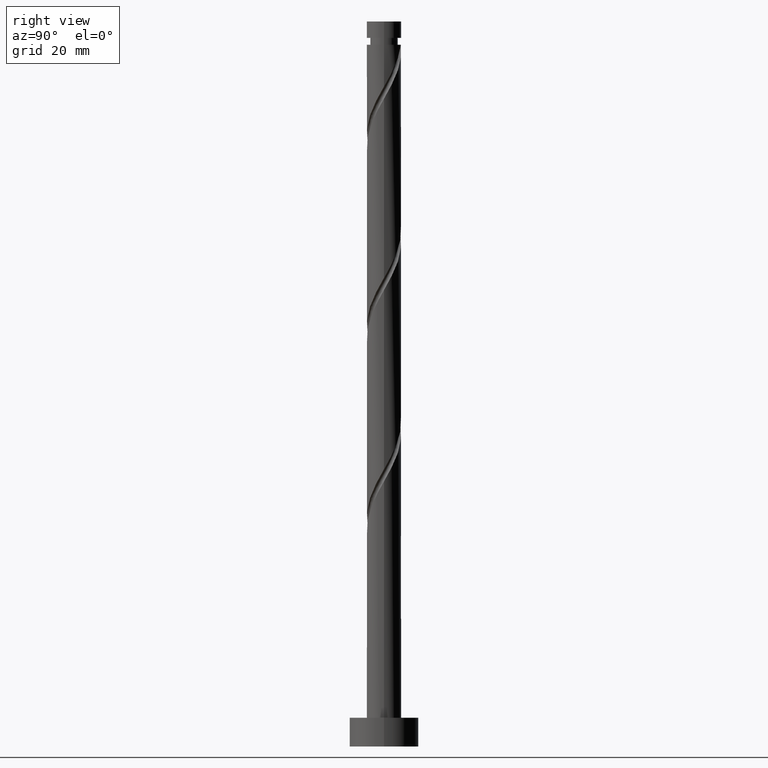
[diagram: clean part render]
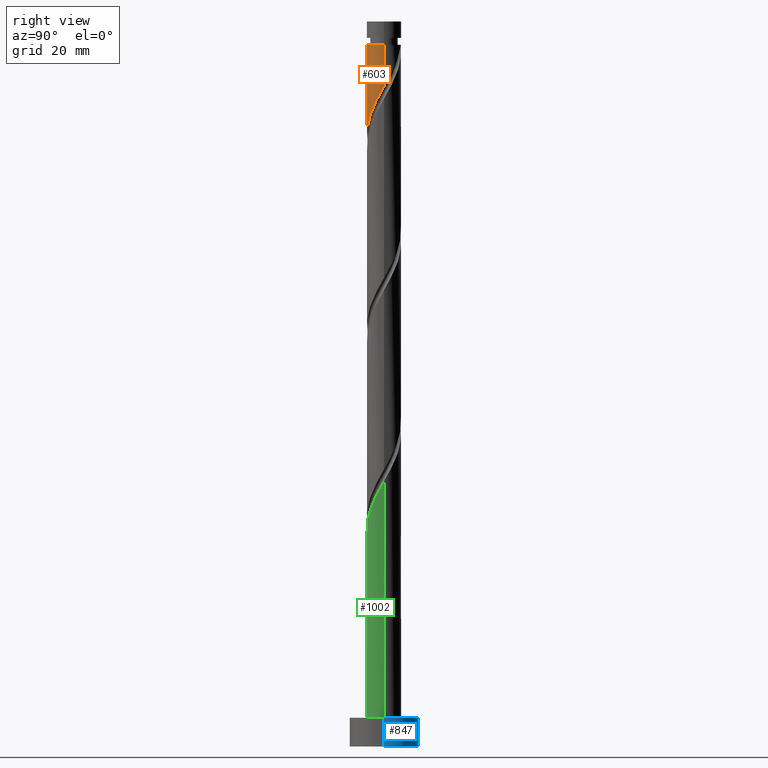
[diagram: same view with three faces highlighted in distinct colors, each labeled with its STEP entity id]
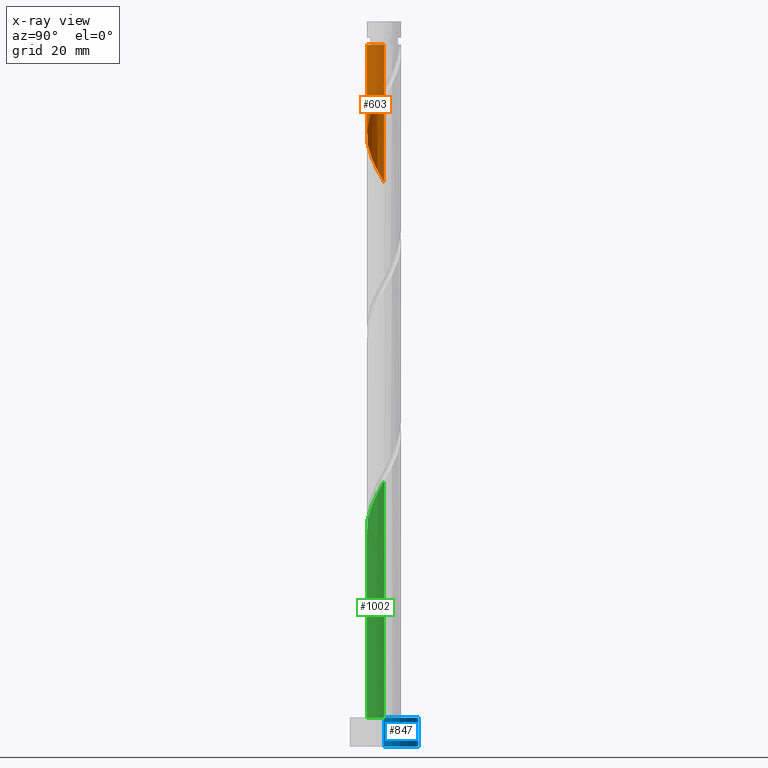
[diagram: x-ray of the same camera — body ghosted, the three highlighted faces saturated]
A machine part, right view with three faces highlighted in distinct colors.
The next image is the same camera in x-ray (body ghosted, the three faces saturated) — at least one of them is partly hidden behind the body in this view.
Their STEP definitions:

[orange] entity #603 — the highlighted cylindrical surface (edge-blend (fillet) strip) has radius 3 mm, axis along (-0, -0, -1).
#18 = DIRECTION ( 'NONE',  ( -0.000000000000000000, -0.000000000000000000, -1.000000000000000000 ) ) ;
#22 = VERTEX_POINT ( 'NONE', #530 ) ;
#27 = CARTESIAN_POINT ( 'NONE',  ( 0.000000000000000000, 0.000000000000000000, 126.2999999999999972 ) ) ;
#29 = CARTESIAN_POINT ( 'NONE',  ( 0.5784892297585039200, -2.970074347914949620, 107.6611894552027309 ) ) ;
#64 = VERTEX_POINT ( 'NONE', #1474 ) ;
#126 = AXIS2_PLACEMENT_3D ( 'NONE', #27, #294, #833 ) ;
#148 = CARTESIAN_POINT ( 'NONE',  ( 0.000000000000000000, 0.000000000000000000, 122.2445227885360310 ) ) ;
#211 = ORIENTED_EDGE ( 'NONE', *, *, #1670, .F. ) ;
#214 = CARTESIAN_POINT ( 'NONE',  ( -2.501031355072559137, -1.656756518304341563, 101.4111894552027024 ) ) ;
#223 = VERTEX_POINT ( 'NONE', #1624 ) ;
#294 = DIRECTION ( 'NONE',  ( -0.000000000000000000, -0.000000000000000000, -1.000000000000000000 ) ) ;
#340 = CARTESIAN_POINT ( 'NONE',  ( 2.999999999999997780, 3.673940397442058882E-16, 122.2445227885360310 ) ) ;
#351 = CARTESIAN_POINT ( 'NONE',  ( -3.000000000000001332, -0.09222585497302165924, 98.47125313177429007 ) ) ;
#409 = LINE ( 'NONE', #978, #1280 ) ;
#527 = LINE ( 'NONE', #1197, #716 ) ;
#530 = CARTESIAN_POINT ( 'NONE',  ( -3.000000000000000444, 1.345840599925824084E-15, 98.30808944374611258 ) ) ;
#562 = CARTESIAN_POINT ( 'NONE',  ( 2.247618455994263797, -1.987010638188424050, 111.1334116774249452 ) ) ;
#569 = CARTESIAN_POINT ( 'NONE',  ( 0.1842775552007376860, -2.994334948306426103, 106.9667450107582880 ) ) ;
#598 = EDGE_CURVE ( 'NONE', #889, #223, #995, .T. ) ;
#603 = ADVANCED_FACE ( 'NONE', ( #1382 ), #1110, .T. ) ;
#669 = CARTESIAN_POINT ( 'NONE',  ( -0.2099341193570287145, -3.018595548697903475, 106.2723005663138309 ) ) ;
#716 = VECTOR ( 'NONE', #1055, 1000.000000000000000 ) ;
#725 = CARTESIAN_POINT ( 'NONE',  ( -2.719147488601523222, -1.327489493864649539, 100.7167450107582454 ) ) ;
#770 = CARTESIAN_POINT ( 'NONE',  ( -2.844610918258236421, -0.9529893618115774512, 100.0223005663138309 ) ) ;
#771 = EDGE_CURVE ( 'NONE', #889, #64, #409, .T. ) ;
#800 = CARTESIAN_POINT ( 'NONE',  ( -0.9840508051709164761, -2.861404451302098639, 104.8834116774249452 ) ) ;
#833 = DIRECTION ( 'NONE',  ( -1.000000000000000000, 0.000000000000000000, 0.000000000000000000 ) ) ;
#843 = CARTESIAN_POINT ( 'NONE',  ( -2.994334948306426103, -0.1842775552007384354, 98.63341167742495941 ) ) ;
#889 = VERTEX_POINT ( 'NONE', #340 ) ;
#901 = EDGE_LOOP ( 'NONE', ( #953, #962, #1145, #211 ) ) ;
#950 = DIRECTION ( 'NONE',  ( -0.000000000000000000, -0.000000000000000000, -1.000000000000000000 ) ) ;
#953 = ORIENTED_EDGE ( 'NONE', *, *, #771, .F. ) ;
#961 = CARTESIAN_POINT ( 'NONE',  ( 0.9529893618115771181, -2.844610918258236421, 108.3556338996471453 ) ) ;
#962 = ORIENTED_EDGE ( 'NONE', *, *, #598, .T. ) ;
#972 = CARTESIAN_POINT ( 'NONE',  ( -1.337578430002084540, -2.685308910273296767, 104.1889672329804881 ) ) ;
#978 = CARTESIAN_POINT ( 'NONE',  ( 3.000000000000000444, 3.673940397442060361E-16, 126.2999999999999972 ) ) ;
#995 = CIRCLE ( 'NONE', #1366, 2.999999999999997780 ) ;
#1055 = DIRECTION ( 'NONE',  ( -0.000000000000000000, -0.000000000000000000, -1.000000000000000000 ) ) ;
#1076 = CARTESIAN_POINT ( 'NONE',  ( 3.000000000000000888, -0.3015113445777648504, 114.4413297412235124 ) ) ;
#1086 = CARTESIAN_POINT ( 'NONE',  ( 2.861404451302097751, -0.9840508051709180304, 113.2167450107582596 ) ) ;
#1094 = CARTESIAN_POINT ( 'NONE',  ( 1.986023542744032477, -2.282915221543594608, 110.4389672329804881 ) ) ;
#1110 = CYLINDRICAL_SURFACE ( 'NONE', #126, 3.000000000000000444 ) ;
#1113 = CARTESIAN_POINT ( 'NONE',  ( 2.509213369244494451, -1.691106054833253047, 111.8278561218693881 ) ) ;
#1145 = ORIENTED_EDGE ( 'NONE', *, *, #1492, .T. ) ;
#1197 = CARTESIAN_POINT ( 'NONE',  ( -3.000000000000000444, 0.000000000000000000, 126.2999999999999972 ) ) ;
#1213 = CARTESIAN_POINT ( 'NONE',  ( -1.987010638188424050, -2.247618455994263797, 102.8000783440916166 ) ) ;
#1240 = CARTESIAN_POINT ( 'NONE',  ( 3.000000000000000888, 2.153344959881318534E-15, 114.9747561104127698 ) ) ;
#1280 = VECTOR ( 'NONE', #950, 1000.000000000000000 ) ;
#1300 =( BOUNDED_CURVE ( )  B_SPLINE_CURVE ( 2, ( #1240, #1076, #1363, #1086, #1626, #1113, #562, #1094, #1634, #1654, #961, #29, #569, #669, #1526, #800, #972, #1344, #1213, #1672, #214, #725, #770, #1312, #843, #351, #1429 ),
 .UNSPECIFIED., .F., .T. ) 
 B_SPLINE_CURVE_WITH_KNOTS ( ( 3, 2, 2, 2, 2, 2, 2, 2, 2, 2, 2, 2, 2, 3 ),
 ( 0.3045317669814462946, 0.3125000000000000000, 0.3229166666666666852, 0.3333333333333333148, 0.3437500000000000000, 0.3541666666666666852, 0.3645833333333333148, 0.3750000000000000000, 0.3854166666666666852, 0.3958333333333333148, 0.4062500000000000000, 0.4166666666666666852, 0.4270833333333333148, 0.4295317669814462391 ),
 .UNSPECIFIED. ) 
 CURVE ( )  GEOMETRIC_REPRESENTATION_ITEM ( )  RATIONAL_B_SPLINE_CURVE ( ( 0.9062941362546335089, 0.9031415850403378132, 0.9090909090909129464, 0.9013135103398315362, 0.9090909090909129464, 0.9013135103398315362, 0.9090909090909129464, 0.9013135103398315362, 0.9090909090909129464, 0.9013135103398315362, 0.9090909090909129464, 0.9013135103398315362, 0.9090909090909129464, 0.9013135103398315362, 0.9090909090909129464, 0.9013135103398315362, 0.9090909090909129464, 0.9013135103398315362, 0.9090909090909129464, 0.9013135103398315362, 0.9090909090909129464, 0.9013135103398315362, 0.9090909090909129464, 0.9013135103398315362, 0.9090909090909129464, 0.9072628343904067805, 0.9062941362546335089 ) ) 
 REPRESENTATION_ITEM ( '' )  );
#1312 = CARTESIAN_POINT ( 'NONE',  ( -2.970074347914949175, -0.5784892297585045862, 99.32785612186938806 ) ) ;
#1344 = CARTESIAN_POINT ( 'NONE',  ( -1.691106054833251493, -2.509213369244495784, 103.4945227885360453 ) ) ;
#1363 = CARTESIAN_POINT ( 'NONE',  ( 2.940000000000000391, -0.5969924622639725120, 113.9111894552027309 ) ) ;
#1366 = AXIS2_PLACEMENT_3D ( 'NONE', #148, #18, #1372 ) ;
#1372 = DIRECTION ( 'NONE',  ( -1.000000000000000000, 0.000000000000000000, 0.000000000000000000 ) ) ;
#1382 = FACE_OUTER_BOUND ( 'NONE', #901, .T. ) ;
#1429 = CARTESIAN_POINT ( 'NONE',  ( -3.000000000000000444, 1.345840599925824084E-15, 98.30808944374611258 ) ) ;
#1474 = CARTESIAN_POINT ( 'NONE',  ( 3.000000000000000888, 2.153344959881318534E-15, 114.9747561104127698 ) ) ;
#1492 = EDGE_CURVE ( 'NONE', #223, #22, #527, .T. ) ;
#1526 = CARTESIAN_POINT ( 'NONE',  ( -0.5969924622639721790, -2.940000000000000391, 105.5778561218693881 ) ) ;
#1624 = CARTESIAN_POINT ( 'NONE',  ( -2.999999999999997780, 0.000000000000000000, 122.2445227885360310 ) ) ;
#1626 = CARTESIAN_POINT ( 'NONE',  ( 2.685308910273296767, -1.337578430002085206, 112.5223005663138451 ) ) ;
#1634 = CARTESIAN_POINT ( 'NONE',  ( 1.656756518304340453, -2.501031355072559581, 109.7445227885360453 ) ) ;
#1654 = CARTESIAN_POINT ( 'NONE',  ( 1.327489493864649539, -2.719147488601523222, 109.0500783440916308 ) ) ;
#1670 = EDGE_CURVE ( 'NONE', #64, #22, #1300, .T. ) ;
#1672 = CARTESIAN_POINT ( 'NONE',  ( -2.282915221543595052, -1.986023542744032921, 102.1056338996471311 ) ) ;

[blue] entity #847 — the highlighted cylindrical surface (edge-blend (fillet) strip) has radius 6 mm, axis along (-0, -0, -1).
#7 = CARTESIAN_POINT ( 'NONE',  ( 0.000000000000000000, 0.000000000000000000, 0.000000000000000000 ) ) ;
#190 = CARTESIAN_POINT ( 'NONE',  ( 0.000000000000000000, 0.000000000000000000, 5.000000000000000000 ) ) ;
#206 = LINE ( 'NONE', #877, #1025 ) ;
#262 = EDGE_CURVE ( 'NONE', #1221, #628, #648, .T. ) ;
#297 = EDGE_LOOP ( 'NONE', ( #1384, #1627, #907, #1434 ) ) ;
#433 = AXIS2_PLACEMENT_3D ( 'NONE', #1436, #488, #886 ) ;
#446 = CARTESIAN_POINT ( 'NONE',  ( -6.000000000000000888, 0.000000000000000000, 0.000000000000000000 ) ) ;
#450 = DIRECTION ( 'NONE',  ( 0.000000000000000000, 0.000000000000000000, 1.000000000000000000 ) ) ;
#463 = CYLINDRICAL_SURFACE ( 'NONE', #433, 6.000000000000000888 ) ;
#478 = EDGE_CURVE ( 'NONE', #626, #628, #1564, .T. ) ;
#488 = DIRECTION ( 'NONE',  ( -0.000000000000000000, -0.000000000000000000, -1.000000000000000000 ) ) ;
#518 = DIRECTION ( 'NONE',  ( -0.000000000000000000, -0.000000000000000000, -1.000000000000000000 ) ) ;
#620 = CARTESIAN_POINT ( 'NONE',  ( -6.000000000000000888, 0.000000000000000000, 5.000000000000000000 ) ) ;
#626 = VERTEX_POINT ( 'NONE', #1360 ) ;
#628 = VERTEX_POINT ( 'NONE', #446 ) ;
#648 = LINE ( 'NONE', #1728, #682 ) ;
#682 = VECTOR ( 'NONE', #518, 1000.000000000000000 ) ;
#734 = CARTESIAN_POINT ( 'NONE',  ( 6.000000000000000888, 7.347880794884120722E-16, 5.000000000000000000 ) ) ;
#766 = CIRCLE ( 'NONE', #1677, 6.000000000000000888 ) ;
#847 = ADVANCED_FACE ( 'NONE', ( #1136 ), #463, .T. ) ;
#877 = CARTESIAN_POINT ( 'NONE',  ( 6.000000000000000888, 7.347880794884120722E-16, 5.000000000000000000 ) ) ;
#886 = DIRECTION ( 'NONE',  ( -1.000000000000000000, 0.000000000000000000, 0.000000000000000000 ) ) ;
#887 = EDGE_CURVE ( 'NONE', #1307, #626, #206, .T. ) ;
#907 = ORIENTED_EDGE ( 'NONE', *, *, #478, .T. ) ;
#1016 = DIRECTION ( 'NONE',  ( 1.000000000000000000, 0.000000000000000000, 0.000000000000000000 ) ) ;
#1025 = VECTOR ( 'NONE', #1160, 1000.000000000000000 ) ;
#1136 = FACE_OUTER_BOUND ( 'NONE', #297, .T. ) ;
#1160 = DIRECTION ( 'NONE',  ( -0.000000000000000000, -0.000000000000000000, -1.000000000000000000 ) ) ;
#1221 = VERTEX_POINT ( 'NONE', #620 ) ;
#1243 = EDGE_CURVE ( 'NONE', #1307, #1221, #766, .T. ) ;
#1303 = AXIS2_PLACEMENT_3D ( 'NONE', #7, #1732, #1592 ) ;
#1307 = VERTEX_POINT ( 'NONE', #734 ) ;
#1360 = CARTESIAN_POINT ( 'NONE',  ( 6.000000000000000888, 7.347880794884120722E-16, 0.000000000000000000 ) ) ;
#1384 = ORIENTED_EDGE ( 'NONE', *, *, #1243, .F. ) ;
#1434 = ORIENTED_EDGE ( 'NONE', *, *, #262, .F. ) ;
#1436 = CARTESIAN_POINT ( 'NONE',  ( 0.000000000000000000, 0.000000000000000000, 5.000000000000000000 ) ) ;
#1564 = CIRCLE ( 'NONE', #1303, 6.000000000000000888 ) ;
#1592 = DIRECTION ( 'NONE',  ( 1.000000000000000000, 0.000000000000000000, 0.000000000000000000 ) ) ;
#1627 = ORIENTED_EDGE ( 'NONE', *, *, #887, .T. ) ;
#1677 = AXIS2_PLACEMENT_3D ( 'NONE', #190, #450, #1016 ) ;
#1728 = CARTESIAN_POINT ( 'NONE',  ( -6.000000000000000888, 0.000000000000000000, 5.000000000000000000 ) ) ;
#1732 = DIRECTION ( 'NONE',  ( 0.000000000000000000, 0.000000000000000000, 1.000000000000000000 ) ) ;

[green] entity #1002 — the highlighted cylindrical surface (edge-blend (fillet) strip) has radius 3 mm, axis along (-0, -0, -1).
#39 = CARTESIAN_POINT ( 'NONE',  ( -3.000000000000000444, 0.000000000000000000, 126.2999999999999972 ) ) ;
#42 = VECTOR ( 'NONE', #438, 1000.000000000000000 ) ;
#83 = CARTESIAN_POINT ( 'NONE',  ( 1.987010638188424938, -2.247618455994268682, 41.68896723298048101 ) ) ;
#94 = VERTEX_POINT ( 'NONE', #803 ) ;
#113 = CARTESIAN_POINT ( 'NONE',  ( -2.685308910273302985, -1.337578430002084984, 31.96674501075826669 ) ) ;
#136 = DIRECTION ( 'NONE',  ( -0.000000000000000000, -0.000000000000000000, -1.000000000000000000 ) ) ;
#144 = ORIENTED_EDGE ( 'NONE', *, *, #699, .F. ) ;
#154 = CIRCLE ( 'NONE', #970, 3.000000000000000444 ) ;
#191 = CARTESIAN_POINT ( 'NONE',  ( -0.5784892297585074727, -2.970074347914952728, 36.82785612186936675 ) ) ;
#202 = CARTESIAN_POINT ( 'NONE',  ( 1.337578430002084540, -2.685308910273302985, 40.30007834409159528 ) ) ;
#239 = CARTESIAN_POINT ( 'NONE',  ( -2.940000000000006164, -0.5969924622639720679, 30.57785612186937030 ) ) ;
#288 = ORIENTED_EDGE ( 'NONE', *, *, #1571, .T. ) ;
#307 = CARTESIAN_POINT ( 'NONE',  ( 0.000000000000000000, 0.000000000000000000, 126.2999999999999972 ) ) ;
#317 = CARTESIAN_POINT ( 'NONE',  ( 2.501031355072561357, -1.656756518304346226, 43.07785612186938096 ) ) ;
#319 = CARTESIAN_POINT ( 'NONE',  ( 3.000000000000000444, 3.673940397442060361E-16, 5.000000000000000000 ) ) ;
#402 = CARTESIAN_POINT ( 'NONE',  ( -3.000000000000005773, -9.211531217270026728E-15, 29.51428946665932074 ) ) ;
#438 = DIRECTION ( 'NONE',  ( -0.000000000000000000, -0.000000000000000000, -1.000000000000000000 ) ) ;
#442 = CARTESIAN_POINT ( 'NONE',  ( -2.247618455994268682, -1.987010638188424938, 33.35563389964715242 ) ) ;
#458 = CARTESIAN_POINT ( 'NONE',  ( 2.994334948306430100, -0.1842775552007419881, 45.85563389964715952 ) ) ;
#502 = VERTEX_POINT ( 'NONE', #402 ) ;
#504 = CYLINDRICAL_SURFACE ( 'NONE', #1511, 3.000000000000000444 ) ;
#616 = CARTESIAN_POINT ( 'NONE',  ( 2.282915221543595941, -1.986023542744037584, 42.38341167742490967 ) ) ;
#684 = CARTESIAN_POINT ( 'NONE',  ( 3.000000000000000444, 3.673940397442060361E-16, 126.2999999999999972 ) ) ;
#699 = EDGE_CURVE ( 'NONE', #747, #1103, #1390, .T. ) ;
#735 = DIRECTION ( 'NONE',  ( -1.000000000000000000, 0.000000000000000000, 0.000000000000000000 ) ) ;
#741 = CARTESIAN_POINT ( 'NONE',  ( 1.691106054833251937, -2.509213369244499781, 40.99452278853602394 ) ) ;
#743 = VECTOR ( 'NONE', #136, 1000.000000000000000 ) ;
#747 = VERTEX_POINT ( 'NONE', #1533 ) ;
#754 = ORIENTED_EDGE ( 'NONE', *, *, #1376, .T. ) ;
#785 = DIRECTION ( 'NONE',  ( 1.000000000000000000, 0.000000000000000000, 0.000000000000000000 ) ) ;
#803 = CARTESIAN_POINT ( 'NONE',  ( -3.000000000000000444, 0.000000000000000000, 5.000000000000000000 ) ) ;
#857 = CARTESIAN_POINT ( 'NONE',  ( 2.844610918258241306, -0.9529893618115813370, 44.46674501075826669 ) ) ;
#859 = CARTESIAN_POINT ( 'NONE',  ( -0.9529893618115808929, -2.844610918258241306, 36.13341167742493809 ) ) ;
#872 = CARTESIAN_POINT ( 'NONE',  ( 0.9840508051709158099, -2.861404451302103968, 39.60563389964716663 ) ) ;
#900 = DIRECTION ( 'NONE',  ( 0.000000000000000000, 0.000000000000000000, 1.000000000000000000 ) ) ;
#909 = CARTESIAN_POINT ( 'NONE',  ( -3.000000000000005773, -9.211531217270026728E-15, 29.51428946665932074 ) ) ;
#970 = AXIS2_PLACEMENT_3D ( 'NONE', #1189, #900, #785 ) ;
#982 = CARTESIAN_POINT ( 'NONE',  ( -1.986023542744037584, -2.282915221543595941, 34.05007834409159528 ) ) ;
#1002 = ADVANCED_FACE ( 'NONE', ( #1305 ), #504, .T. ) ;
#1024 = CARTESIAN_POINT ( 'NONE',  ( 3.000000000000005329, -1.046764911053411698E-15, 46.18095613332597793 ) ) ;
#1103 = VERTEX_POINT ( 'NONE', #319 ) ;
#1115 = CARTESIAN_POINT ( 'NONE',  ( -2.509213369244499781, -1.691106054833252825, 32.66118945520270955 ) ) ;
#1122 = CARTESIAN_POINT ( 'NONE',  ( 2.719147488601527218, -1.327489493864653314, 43.77230056631380961 ) ) ;
#1123 = CARTESIAN_POINT ( 'NONE',  ( -1.656756518304345116, -2.501031355072562690, 34.74452278853604525 ) ) ;
#1132 = CARTESIAN_POINT ( 'NONE',  ( 0.2099341193570265496, -3.018595548697906139, 38.21674501075824537 ) ) ;
#1150 = EDGE_CURVE ( 'NONE', #502, #747, #1178, .T. ) ;
#1178 =( BOUNDED_CURVE ( )  B_SPLINE_CURVE ( 2, ( #909, #1453, #239, #1316, #113, #1115, #442, #982, #1123, #1666, #859, #191, #1539, #1132, #1674, #872, #202, #741, #83, #616, #317, #1122, #857, #1553, #458, #1274, #1024 ),
 .UNSPECIFIED., .F., .T. ) 
 B_SPLINE_CURVE_WITH_KNOTS ( ( 3, 2, 2, 2, 2, 2, 2, 2, 2, 2, 2, 2, 2, 3 ),
 ( 0.05453176698144646117, 0.06250000000000000000, 0.07291666666666662966, 0.08333333333333337034, 0.09375000000000000000, 0.1041666666666666297, 0.1145833333333333703, 0.1250000000000000000, 0.1354166666666666297, 0.1458333333333333703, 0.1562500000000000000, 0.1666666666666666297, 0.1770833333333333703, 0.1795317669814463224 ),
 .UNSPECIFIED. ) 
 CURVE ( )  GEOMETRIC_REPRESENTATION_ITEM ( )  RATIONAL_B_SPLINE_CURVE ( ( 0.9062941362546392821, 0.9031415850403439194, 0.9090909090909191637, 0.9013135103398377534, 0.9090909090909191637, 0.9013135103398377534, 0.9090909090909191637, 0.9013135103398377534, 0.9090909090909191637, 0.9013135103398377534, 0.9090909090909191637, 0.9013135103398377534, 0.9090909090909191637, 0.9013135103398377534, 0.9090909090909191637, 0.9013135103398377534, 0.9090909090909191637, 0.9013135103398377534, 0.9090909090909191637, 0.9013135103398377534, 0.9090909090909191637, 0.9013135103398377534, 0.9090909090909191637, 0.9013135103398377534, 0.9090909090909191637, 0.9072628343904128867, 0.9062941362546395041 ) ) 
 REPRESENTATION_ITEM ( '' )  );
#1189 = CARTESIAN_POINT ( 'NONE',  ( 0.000000000000000000, 0.000000000000000000, 5.000000000000000000 ) ) ;
#1249 = LINE ( 'NONE', #39, #743 ) ;
#1262 = DIRECTION ( 'NONE',  ( -0.000000000000000000, -0.000000000000000000, -1.000000000000000000 ) ) ;
#1274 = CARTESIAN_POINT ( 'NONE',  ( 3.000000000000004885, -0.09222585497302368540, 46.01779244529782886 ) ) ;
#1292 = ORIENTED_EDGE ( 'NONE', *, *, #1150, .F. ) ;
#1305 = FACE_OUTER_BOUND ( 'NONE', #1353, .T. ) ;
#1316 = CARTESIAN_POINT ( 'NONE',  ( -2.861404451302103968, -0.9840508051709158099, 31.27230056631380961 ) ) ;
#1353 = EDGE_LOOP ( 'NONE', ( #144, #1292, #288, #754 ) ) ;
#1376 = EDGE_CURVE ( 'NONE', #94, #1103, #154, .T. ) ;
#1390 = LINE ( 'NONE', #684, #42 ) ;
#1453 = CARTESIAN_POINT ( 'NONE',  ( -3.000000000000004885, -0.3015113445777681811, 30.04771583584858163 ) ) ;
#1511 = AXIS2_PLACEMENT_3D ( 'NONE', #307, #1262, #735 ) ;
#1533 = CARTESIAN_POINT ( 'NONE',  ( 3.000000000000005329, -1.046764911053411698E-15, 46.18095613332597793 ) ) ;
#1539 = CARTESIAN_POINT ( 'NONE',  ( -0.1842775552007404338, -2.994334948306430100, 37.52230056631382382 ) ) ;
#1553 = CARTESIAN_POINT ( 'NONE',  ( 2.970074347914952728, -0.5784892297585085830, 45.16118945520270245 ) ) ;
#1571 = EDGE_CURVE ( 'NONE', #502, #94, #1249, .T. ) ;
#1666 = CARTESIAN_POINT ( 'NONE',  ( -1.327489493864653314, -2.719147488601527662, 35.43896723298048812 ) ) ;
#1674 = CARTESIAN_POINT ( 'NONE',  ( 0.5969924622639720679, -2.940000000000006164, 38.91118945520269534 ) ) ;